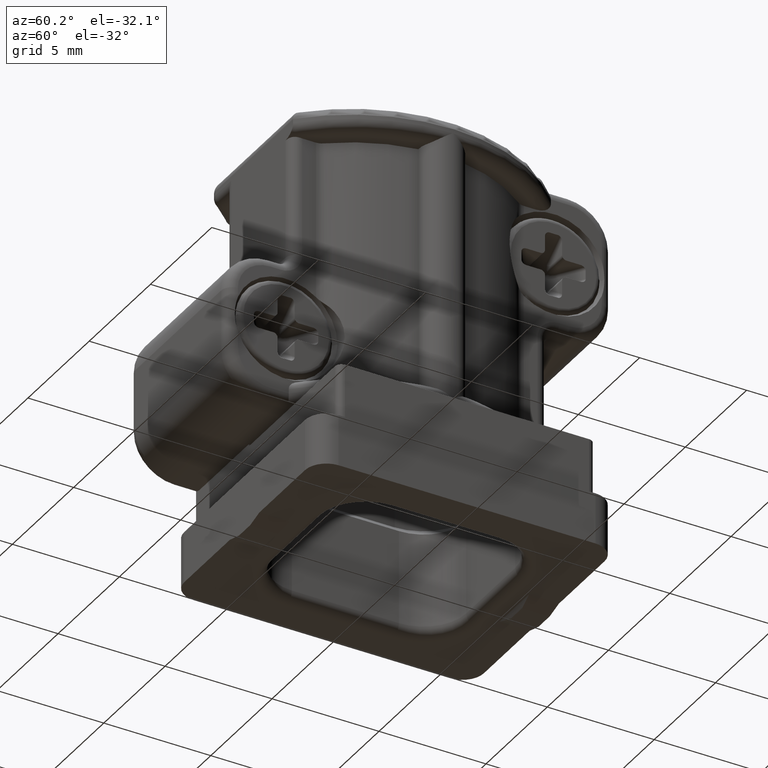
[diagram: clean part render]
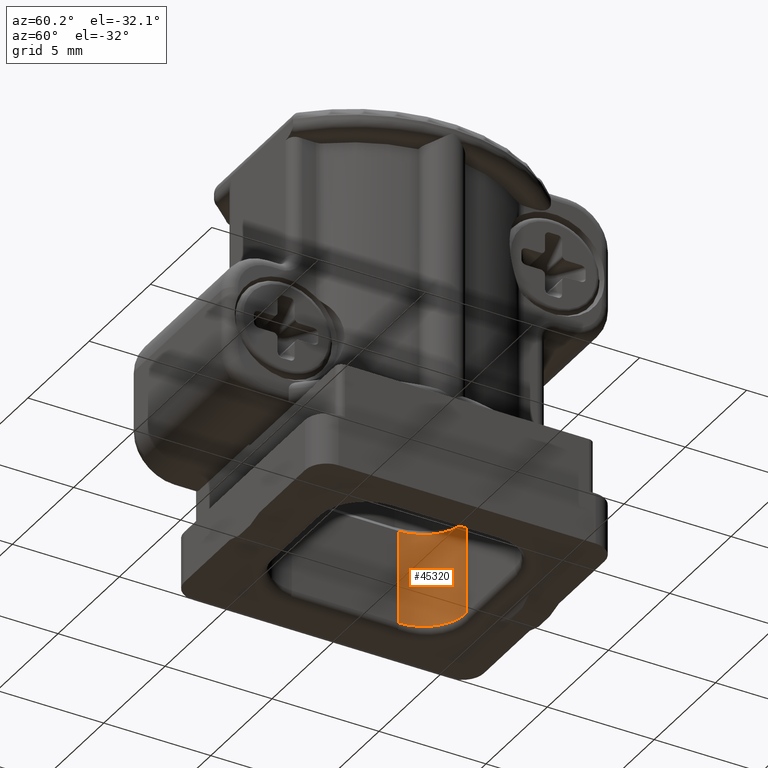
[diagram: same view with one face highlighted and labeled with its STEP entity id]
A machine part, auxiliary view. The second image highlights one B-rep face of the part: STEP entity #45320.
In plain terms, the highlighted cylindrical surface (partial cylindrical patch) has radius 2 mm, axis along (0, 0, 1).
Its self-contained STEP definition (entity closure, byte-faithful):
#2210=CARTESIAN_POINT('',(29.7244043500691,-43.3661187952982,
13.5822510026395));
#2220=VERTEX_POINT('',#2210);
#2950=CARTESIAN_POINT('',(27.7244043500691,-45.3661187952982,
13.5822510026395));
#2960=VERTEX_POINT('',#2950);
#4630=CARTESIAN_POINT('',(29.7244043500691,-43.3661187952982,
9.1822510026395));
#4640=VERTEX_POINT('',#4630);
#4670=CARTESIAN_POINT('',(27.7244043500691,-43.3661187952982,
9.1822510026395));
#4680=DIRECTION('',(0.,0.,-1.));
#4690=DIRECTION('',(0.,1.,0.));
#4700=AXIS2_PLACEMENT_3D('',#4670,#4680,#4690);
#4710=CIRCLE('',#4700,2.);
#4720=CARTESIAN_POINT('',(27.7244043500691,-45.3661187952982,
9.18225100263949));
#4730=VERTEX_POINT('',#4720);
#4740=EDGE_CURVE('',#4640,#4730,#4710,.T.);
#32960=CARTESIAN_POINT('',(27.7244043500691,-45.3661187952982,0.));
#32970=DIRECTION('',(0.,0.,-1.));
#32980=VECTOR('',#32970,1.);
#32990=LINE('',#32960,#32980);
#33000=EDGE_CURVE('',#2960,#4730,#32990,.T.);
#35010=CARTESIAN_POINT('',(27.7244043500691,-43.3661187952982,
13.5822510026395));
#35020=DIRECTION('',(0.,0.,-1.));
#35030=DIRECTION('',(-1.,0.,0.));
#35040=AXIS2_PLACEMENT_3D('',#35010,#35020,#35030);
#35050=CIRCLE('',#35040,2.);
#35060=EDGE_CURVE('',#2220,#2960,#35050,.T.);
#42700=CARTESIAN_POINT('',(29.7244043500691,-43.3661187952982,0.));
#42710=DIRECTION('',(0.,0.,-1.));
#42720=VECTOR('',#42710,1.);
#42730=LINE('',#42700,#42720);
#42740=EDGE_CURVE('',#2220,#4640,#42730,.T.);
#45210=CARTESIAN_POINT('',(27.7244043500691,-43.3661187952982,0.));
#45220=DIRECTION('',(0.,0.,-1.));
#45230=DIRECTION('',(-1.,0.,0.));
#45240=AXIS2_PLACEMENT_3D('',#45210,#45220,#45230);
#45250=CYLINDRICAL_SURFACE('',#45240,2.);
#45260=ORIENTED_EDGE('',*,*,#33000,.F.);
#45270=ORIENTED_EDGE('',*,*,#4740,.T.);
#45280=ORIENTED_EDGE('',*,*,#42740,.T.);
#45290=ORIENTED_EDGE('',*,*,#35060,.F.);
#45300=EDGE_LOOP('',(#45290,#45280,#45270,#45260));
#45310=FACE_OUTER_BOUND('',#45300,.T.);
#45320=ADVANCED_FACE('',(#45310),#45250,.F.);